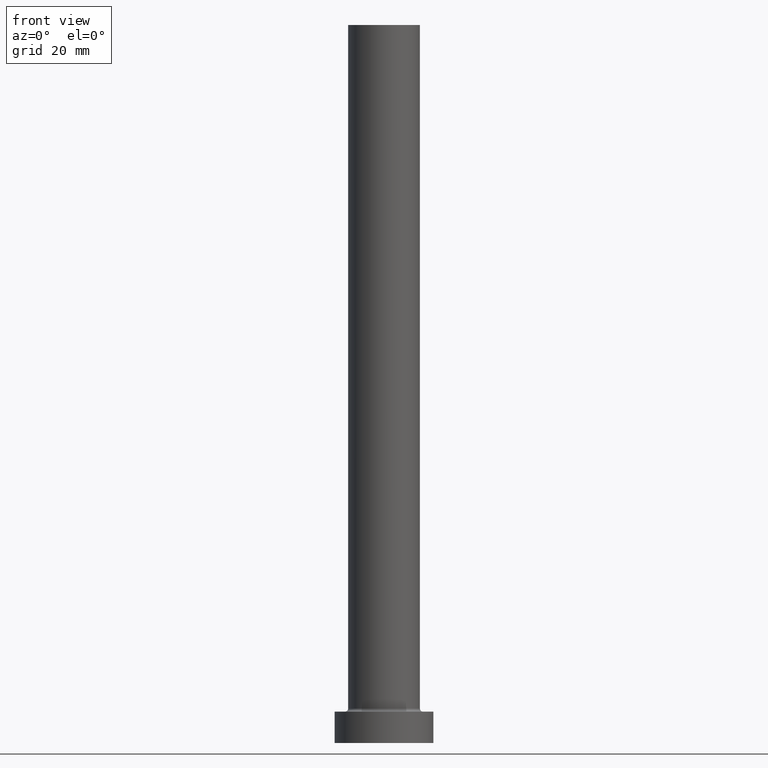
[diagram: clean part render]
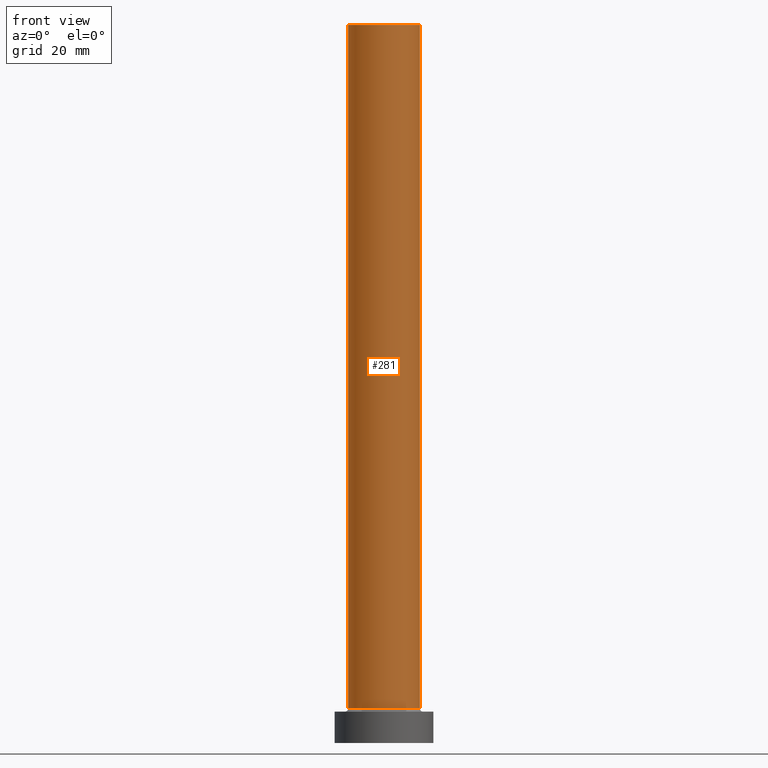
[diagram: same view with one face highlighted and labeled with its STEP entity id]
A machine part, front view. The second image highlights one B-rep face of the part: STEP entity #281.
In plain terms, the highlighted cylindrical surface (edge-blend (fillet) strip) has radius 8 mm, axis along (-0, -0, -1).
Its self-contained STEP definition (entity closure, byte-faithful):
#4 = EDGE_CURVE ( 'NONE', #206, #430, #296, .T. ) ;
#17 = CARTESIAN_POINT ( 'NONE',  ( 0.000000000000000000, 0.000000000000000000, 7.700000000000012612 ) ) ;
#44 = EDGE_CURVE ( 'NONE', #104, #138, #116, .T. ) ;
#58 = CARTESIAN_POINT ( 'NONE',  ( 8.000000000000000000, 9.797174393178825657E-16, 7.700000000000012612 ) ) ;
#74 = AXIS2_PLACEMENT_3D ( 'NONE', #213, #396, #318 ) ;
#89 = DIRECTION ( 'NONE',  ( 0.000000000000000000, 0.000000000000000000, 1.000000000000000000 ) ) ;
#91 = DIRECTION ( 'NONE',  ( 1.000000000000000000, 0.000000000000000000, 0.000000000000000000 ) ) ;
#101 = CIRCLE ( 'NONE', #314, 8.000000000000000000 ) ;
#104 = VERTEX_POINT ( 'NONE', #119 ) ;
#116 = LINE ( 'NONE', #189, #158 ) ;
#119 = CARTESIAN_POINT ( 'NONE',  ( 8.000000000000000000, 9.797174393178825657E-16, 160.0000000000000000 ) ) ;
#138 = VERTEX_POINT ( 'NONE', #58 ) ;
#150 = ORIENTED_EDGE ( 'NONE', *, *, #4, .T. ) ;
#152 = DIRECTION ( 'NONE',  ( -0.000000000000000000, -0.000000000000000000, -1.000000000000000000 ) ) ;
#157 = EDGE_CURVE ( 'NONE', #430, #138, #101, .T. ) ;
#158 = VECTOR ( 'NONE', #334, 1000.000000000000000 ) ;
#171 = FACE_OUTER_BOUND ( 'NONE', #426, .T. ) ;
#173 = CIRCLE ( 'NONE', #434, 8.000000000000000000 ) ;
#189 = CARTESIAN_POINT ( 'NONE',  ( 8.000000000000000000, 9.797174393178825657E-16, 160.0000000000000000 ) ) ;
#206 = VERTEX_POINT ( 'NONE', #345 ) ;
#213 = CARTESIAN_POINT ( 'NONE',  ( 0.000000000000000000, 0.000000000000000000, 160.0000000000000000 ) ) ;
#256 = ORIENTED_EDGE ( 'NONE', *, *, #44, .F. ) ;
#281 = ADVANCED_FACE ( 'NONE', ( #171 ), #457, .T. ) ;
#294 = CARTESIAN_POINT ( 'NONE',  ( 0.000000000000000000, 0.000000000000000000, 160.0000000000000000 ) ) ;
#296 = LINE ( 'NONE', #436, #395 ) ;
#314 = AXIS2_PLACEMENT_3D ( 'NONE', #17, #89, #91 ) ;
#318 = DIRECTION ( 'NONE',  ( -1.000000000000000000, 0.000000000000000000, 0.000000000000000000 ) ) ;
#330 = DIRECTION ( 'NONE',  ( 0.000000000000000000, 0.000000000000000000, 1.000000000000000000 ) ) ;
#334 = DIRECTION ( 'NONE',  ( -0.000000000000000000, -0.000000000000000000, -1.000000000000000000 ) ) ;
#345 = CARTESIAN_POINT ( 'NONE',  ( -8.000000000000000000, 0.000000000000000000, 160.0000000000000000 ) ) ;
#363 = CARTESIAN_POINT ( 'NONE',  ( -8.000000000000000000, 0.000000000000000000, 7.700000000000012612 ) ) ;
#370 = DIRECTION ( 'NONE',  ( 1.000000000000000000, 0.000000000000000000, 0.000000000000000000 ) ) ;
#386 = ORIENTED_EDGE ( 'NONE', *, *, #157, .T. ) ;
#395 = VECTOR ( 'NONE', #152, 1000.000000000000000 ) ;
#396 = DIRECTION ( 'NONE',  ( -0.000000000000000000, -0.000000000000000000, -1.000000000000000000 ) ) ;
#416 = EDGE_CURVE ( 'NONE', #206, #104, #173, .T. ) ;
#421 = ORIENTED_EDGE ( 'NONE', *, *, #416, .F. ) ;
#426 = EDGE_LOOP ( 'NONE', ( #256, #421, #150, #386 ) ) ;
#430 = VERTEX_POINT ( 'NONE', #363 ) ;
#434 = AXIS2_PLACEMENT_3D ( 'NONE', #294, #330, #370 ) ;
#436 = CARTESIAN_POINT ( 'NONE',  ( -8.000000000000000000, 0.000000000000000000, 160.0000000000000000 ) ) ;
#457 = CYLINDRICAL_SURFACE ( 'NONE', #74, 8.000000000000000000 ) ;